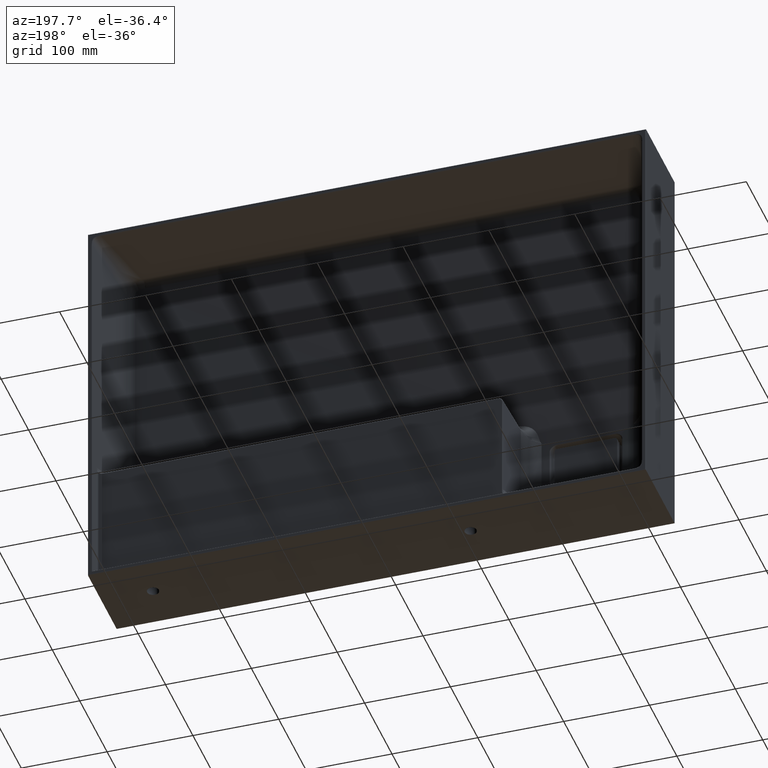
[diagram: clean part render]
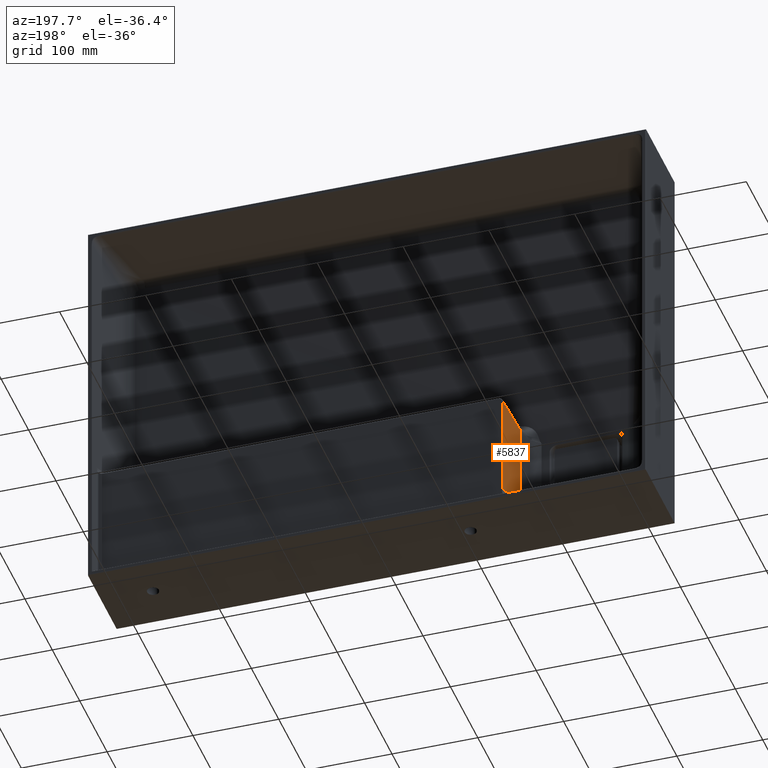
[diagram: same view with one face highlighted and labeled with its STEP entity id]
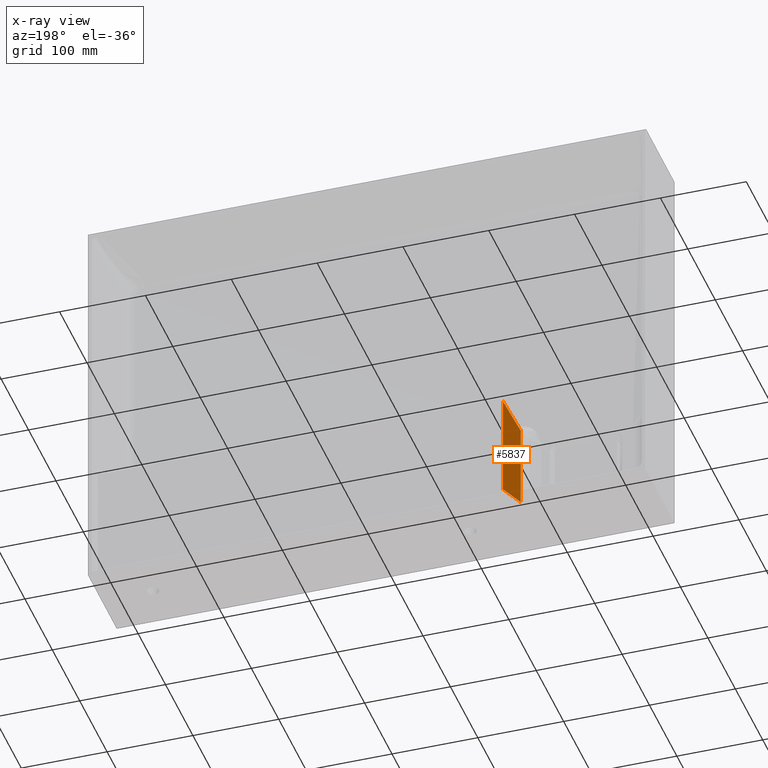
[diagram: x-ray of the same camera — body ghosted, the highlighted face saturated]
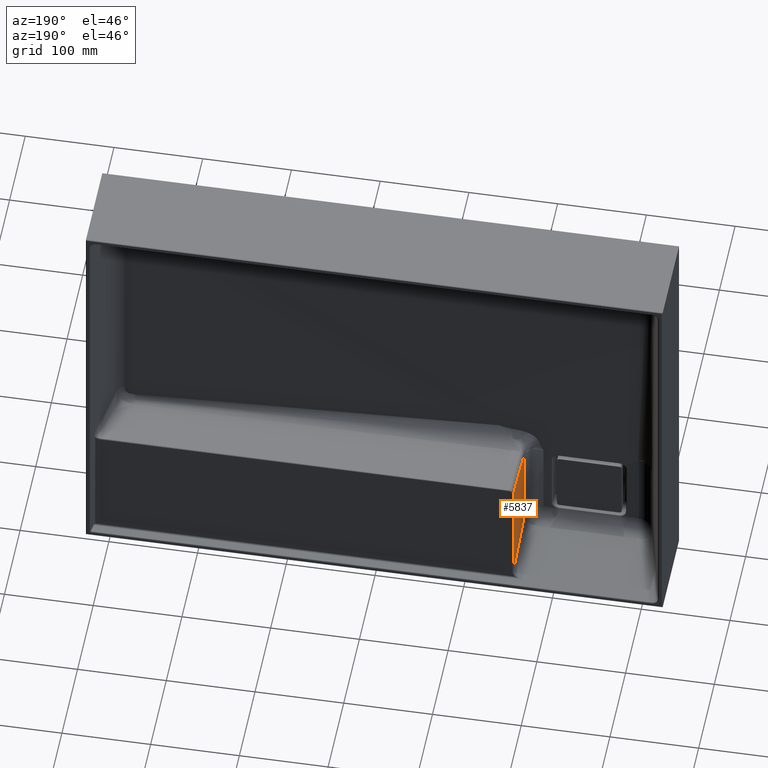
[diagram: same view with one face highlighted and labeled with its STEP entity id]
A machine part, auxiliary view. The second image highlights one B-rep face of the part: STEP entity #5837.
The next image is the same camera in x-ray: the body ghosted, the highlighted face saturated — about 0% of this face is hidden behind the body in this view.
A second angle (auxiliary view) of the same face is appended — the face is thin or edge-on in the first view.
In plain terms, the highlighted planar face has unit normal (-0.9997, 0.0262, 0).
Its self-contained STEP definition (entity closure, byte-faithful):
#156 = VERTEX_POINT ( 'NONE', #5464 ) ;
#203 = ORIENTED_EDGE ( 'NONE', *, *, #337, .T. ) ;
#337 = EDGE_CURVE ( 'NONE', #8455, #156, #6936, .T. ) ;
#1236 = CARTESIAN_POINT ( 'NONE',  ( -156.6025177024990569, 33.80231794534619638, -192.0490734121662513 ) ) ;
#1717 = B_SPLINE_CURVE_WITH_KNOTS ( 'NONE', 3,
 ( #10779, #10768, #10766, #10756, #10746, #10743, #10734 ),
 .UNSPECIFIED., .F., .F.,
 ( 4, 3, 4 ),
 ( -0.1366042310776964253, -0.1294268772257772537, -0.03795092658942178510 ),
 .UNSPECIFIED. ) ;
#2147 = CARTESIAN_POINT ( 'NONE',  ( -155.0255004540541393, 94.02617694829235973, -216.1449057087069150 ) ) ;
#2281 = DIRECTION ( 'NONE',  ( -1.982541115402065356E-16, 7.701079905185871808E-34, -1.000000000000000000 ) ) ;
#2410 = VERTEX_POINT ( 'NONE', #7904 ) ;
#3363 = ORIENTED_EDGE ( 'NONE', *, *, #5426, .T. ) ;
#3862 = VECTOR ( 'NONE', #2281, 1000.000000000000000 ) ;
#4153 = ORIENTED_EDGE ( 'NONE', *, *, #10074, .T. ) ;
#5113 = CARTESIAN_POINT ( 'NONE',  ( -155.0255004540537414, 94.02617694830787798, -229.9999999999999716 ) ) ;
#5426 = EDGE_CURVE ( 'NONE', #5953, #8455, #10917, .T. ) ;
#5464 = CARTESIAN_POINT ( 'NONE',  ( -155.0255004540541393, 94.02617694829235973, -216.1449057087069150 ) ) ;
#5467 = EDGE_CURVE ( 'NONE', #2410, #5953, #1717, .T. ) ;
#5754 = CARTESIAN_POINT ( 'NONE',  ( -155.5511728702013841, 73.95155728068526457, -208.1129616097169048 ) ) ;
#5837 = ADVANCED_FACE ( 'NONE', ( #9426 ), #9375, .T. ) ;
#5953 = VERTEX_POINT ( 'NONE', #9152 ) ;
#6936 = LINE ( 'NONE', #5113, #3862 ) ;
#7673 = VECTOR ( 'NONE', #10902, 1000.000000000000114 ) ;
#7904 = CARTESIAN_POINT ( 'NONE',  ( -156.6025177024990569, 33.80231794534619638, -192.0490734121662513 ) ) ;
#8455 = VERTEX_POINT ( 'NONE', #9661 ) ;
#9048 = CARTESIAN_POINT ( 'NONE',  ( -156.0768452863488562, 53.87693761306712759, -200.0810175107414750 ) ) ;
#9152 = CARTESIAN_POINT ( 'NONE',  ( -156.6025177025741186, 33.80231794248009436, -93.39576892230357430 ) ) ;
#9340 = AXIS2_PLACEMENT_3D ( 'NONE', #9360, #9350, #9344 ) ;
#9344 = DIRECTION ( 'NONE',  ( -0.02617694830787320806, -0.9996573249755572599, 0.0000000000000000000 ) ) ;
#9350 = DIRECTION ( 'NONE',  ( -0.9996573249755573709, 0.02617694830787321153, 1.981861748076886489E-16 ) ) ;
#9360 = CARTESIAN_POINT ( 'NONE',  ( -154.9999999999998579, 95.00000000000000000, -229.9999999999999716 ) ) ;
#9375 = PLANE ( 'NONE',  #9340 ) ;
#9426 = FACE_OUTER_BOUND ( 'NONE', #9951, .T. ) ;
#9661 = CARTESIAN_POINT ( 'NONE',  ( -155.0255004540537129, 94.02617694830787798, -94.97278617082395158 ) ) ;
#9813 = B_SPLINE_CURVE_WITH_KNOTS ( 'NONE', 3,
 ( #2147, #5754, #9048, #1236 ),
 .UNSPECIFIED., .F., .F.,
 ( 4, 4 ),
 ( 0.01230562992436687493, 0.7733191636205350994 ),
 .UNSPECIFIED. ) ;
#9951 = EDGE_LOOP ( 'NONE', ( #3363, #203, #4153, #10562 ) ) ;
#10074 = EDGE_CURVE ( 'NONE', #156, #2410, #9813, .T. ) ;
#10562 = ORIENTED_EDGE ( 'NONE', *, *, #5467, .T. ) ;
#10734 = CARTESIAN_POINT ( 'NONE',  ( -156.6025177025741186, 33.80231794248009436, -93.39576892230357430 ) ) ;
#10743 = CARTESIAN_POINT ( 'NONE',  ( -156.6025177025741186, 33.80231794248009436, -123.8877524677553765 ) ) ;
#10746 = CARTESIAN_POINT ( 'NONE',  ( -156.6025177025741186, 33.80231794248009436, -154.3797360132072072 ) ) ;
#10756 = CARTESIAN_POINT ( 'NONE',  ( -156.6025177025741186, 33.80231794248009436, -184.8717195586590378 ) ) ;
#10766 = CARTESIAN_POINT ( 'NONE',  ( -156.6025177025741186, 33.80231794248009436, -187.2641708426320690 ) ) ;
#10768 = CARTESIAN_POINT ( 'NONE',  ( -156.6025177025741186, 33.80231794248009436, -189.6566221266051286 ) ) ;
#10779 = CARTESIAN_POINT ( 'NONE',  ( -156.6025177024990569, 33.80231794534619638, -192.0490734121662513 ) ) ;
#10902 = DIRECTION ( 'NONE',  ( 0.02616798426497938396, 0.9993150019883697555, -0.02616798426497938396 ) ) ;
#10916 = CARTESIAN_POINT ( 'NONE',  ( -154.9075557676768256, 98.53030280331253721, -95.09073085720085317 ) ) ;
#10917 = LINE ( 'NONE', #10916, #7673 ) ;